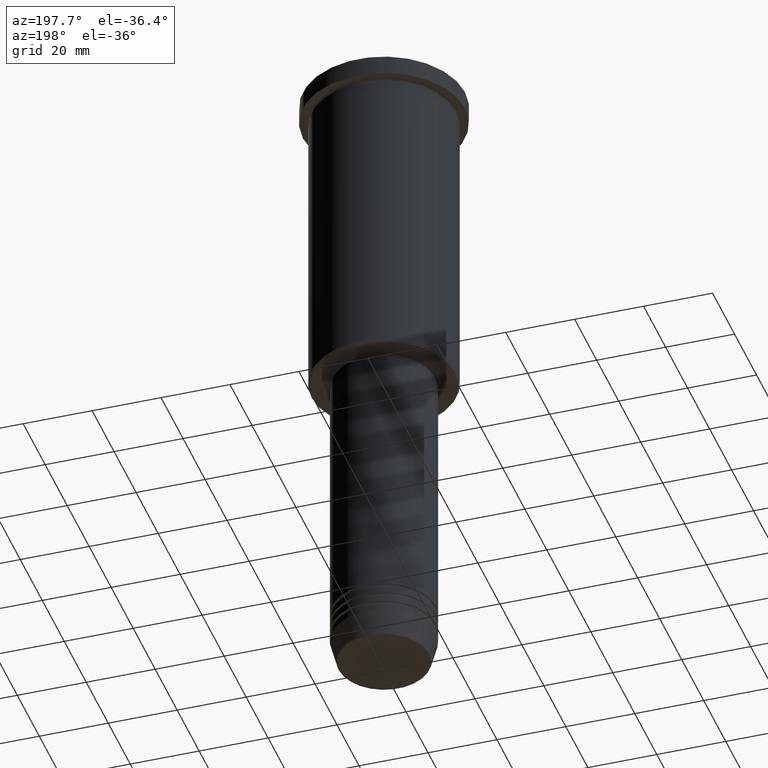
[diagram: clean part render]
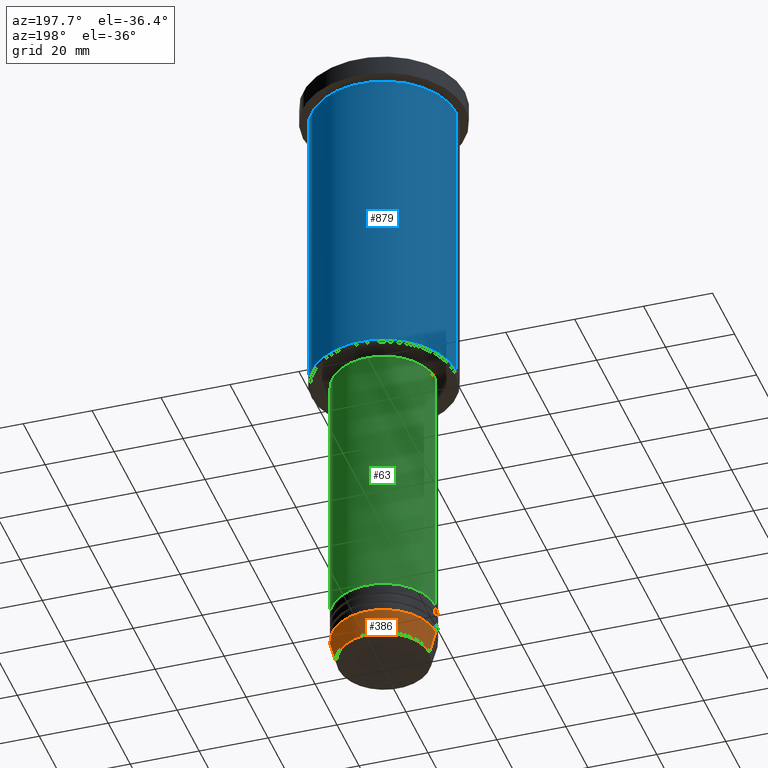
[diagram: same view with three faces highlighted in distinct colors, each labeled with its STEP entity id]
A machine part, auxiliary view with three faces highlighted in distinct colors.
Their STEP definitions:

[orange] entity #386 — the highlighted conical surface has half-angle 15 deg.
#45 = CARTESIAN_POINT ( 'NONE',  ( -13.22365507213719305, 1.728200442216588583E-15, -190.6294095225512422 ) ) ;
#49 = DIRECTION ( 'NONE',  ( -0.000000000000000000, -0.000000000000000000, 1.000000000000000000 ) ) ;
#54 = CIRCLE ( 'NONE', #448, 15.00000000000000000 ) ;
#59 = CARTESIAN_POINT ( 'NONE',  ( -15.00000000000000000, 1.836970198721029589E-15, -184.0000000000000284 ) ) ;
#70 = CONICAL_SURFACE ( 'NONE', #486, 15.00000000000000000, 0.2617993877991500740 ) ;
#85 = VERTEX_POINT ( 'NONE', #799 ) ;
#110 = LINE ( 'NONE', #659, #261 ) ;
#134 = CARTESIAN_POINT ( 'NONE',  ( -15.00000000000000000, 1.836970198721029589E-15, -184.0000000000000284 ) ) ;
#141 = EDGE_CURVE ( 'NONE', #85, #981, #719, .T. ) ;
#151 = VERTEX_POINT ( 'NONE', #59 ) ;
#159 = DIRECTION ( 'NONE',  ( 1.000000000000000000, 0.000000000000000000, 0.000000000000000000 ) ) ;
#193 = EDGE_CURVE ( 'NONE', #85, #806, #110, .T. ) ;
#203 = AXIS2_PLACEMENT_3D ( 'NONE', #771, #413, #159 ) ;
#261 = VECTOR ( 'NONE', #842, 1000.000000000000000 ) ;
#288 = EDGE_CURVE ( 'NONE', #806, #151, #54, .T. ) ;
#331 = DIRECTION ( 'NONE',  ( -0.000000000000000000, -0.000000000000000000, 1.000000000000000000 ) ) ;
#382 = DIRECTION ( 'NONE',  ( -0.2588190451025213501, 3.169619151431772337E-17, 0.9659258262890680902 ) ) ;
#386 = ADVANCED_FACE ( 'NONE', ( #1162 ), #70, .T. ) ;
#395 = CARTESIAN_POINT ( 'NONE',  ( 0.000000000000000000, 0.000000000000000000, -184.0000000000000284 ) ) ;
#402 = DIRECTION ( 'NONE',  ( 1.000000000000000000, 0.000000000000000000, 0.000000000000000000 ) ) ;
#413 = DIRECTION ( 'NONE',  ( -0.000000000000000000, -0.000000000000000000, 1.000000000000000000 ) ) ;
#417 = ORIENTED_EDGE ( 'NONE', *, *, #288, .F. ) ;
#448 = AXIS2_PLACEMENT_3D ( 'NONE', #395, #49, #402 ) ;
#473 = LINE ( 'NONE', #134, #1158 ) ;
#486 = AXIS2_PLACEMENT_3D ( 'NONE', #1152, #331, #500 ) ;
#500 = DIRECTION ( 'NONE',  ( 1.000000000000000000, 0.000000000000000000, 0.000000000000000000 ) ) ;
#658 = ORIENTED_EDGE ( 'NONE', *, *, #850, .T. ) ;
#659 = CARTESIAN_POINT ( 'NONE',  ( 15.00000000000000000, 0.000000000000000000, -184.0000000000000284 ) ) ;
#719 = CIRCLE ( 'NONE', #203, 13.22365507213719305 ) ;
#766 = CARTESIAN_POINT ( 'NONE',  ( 15.00000000000000000, 0.000000000000000000, -184.0000000000000284 ) ) ;
#771 = CARTESIAN_POINT ( 'NONE',  ( 0.000000000000000000, 0.000000000000000000, -190.6294095225512422 ) ) ;
#799 = CARTESIAN_POINT ( 'NONE',  ( 13.22365507213719305, 0.000000000000000000, -190.6294095225512422 ) ) ;
#806 = VERTEX_POINT ( 'NONE', #766 ) ;
#842 = DIRECTION ( 'NONE',  ( 0.2588190451025213501, 0.000000000000000000, 0.9659258262890680902 ) ) ;
#850 = EDGE_CURVE ( 'NONE', #981, #151, #473, .T. ) ;
#968 = ORIENTED_EDGE ( 'NONE', *, *, #193, .F. ) ;
#981 = VERTEX_POINT ( 'NONE', #45 ) ;
#993 = EDGE_LOOP ( 'NONE', ( #1022, #658, #417, #968 ) ) ;
#1022 = ORIENTED_EDGE ( 'NONE', *, *, #141, .T. ) ;
#1152 = CARTESIAN_POINT ( 'NONE',  ( 0.000000000000000000, 0.000000000000000000, -184.0000000000000284 ) ) ;
#1158 = VECTOR ( 'NONE', #382, 1000.000000000000000 ) ;
#1162 = FACE_OUTER_BOUND ( 'NONE', #993, .T. ) ;

[blue] entity #879 — the highlighted cylindrical surface (partial cylindrical patch) has radius 21 mm, axis along (-0, -0, 1).
#23 = CARTESIAN_POINT ( 'NONE',  ( 21.00000000000000000, 0.000000000000000000, -6.999999999999994671 ) ) ;
#108 = CARTESIAN_POINT ( 'NONE',  ( 0.000000000000000000, 0.000000000000000000, -95.50000000000001421 ) ) ;
#118 = VECTOR ( 'NONE', #652, 1000.000000000000000 ) ;
#120 = DIRECTION ( 'NONE',  ( -0.000000000000000000, -0.000000000000000000, 1.000000000000000000 ) ) ;
#152 = EDGE_CURVE ( 'NONE', #1065, #213, #1137, .T. ) ;
#158 = DIRECTION ( 'NONE',  ( 1.000000000000000000, 0.000000000000000000, 0.000000000000000000 ) ) ;
#213 = VERTEX_POINT ( 'NONE', #270 ) ;
#250 = EDGE_CURVE ( 'NONE', #1034, #435, #340, .T. ) ;
#270 = CARTESIAN_POINT ( 'NONE',  ( -21.00000000000000000, 2.571758278209441661E-15, -6.999999999999994671 ) ) ;
#299 = AXIS2_PLACEMENT_3D ( 'NONE', #506, #963, #158 ) ;
#315 = EDGE_LOOP ( 'NONE', ( #772, #899, #385, #675 ) ) ;
#330 = AXIS2_PLACEMENT_3D ( 'NONE', #108, #120, #760 ) ;
#340 = LINE ( 'NONE', #634, #802 ) ;
#377 = EDGE_CURVE ( 'NONE', #1034, #1065, #414, .T. ) ;
#385 = ORIENTED_EDGE ( 'NONE', *, *, #1082, .F. ) ;
#414 = CIRCLE ( 'NONE', #330, 21.00000000000000000 ) ;
#419 = AXIS2_PLACEMENT_3D ( 'NONE', #811, #815, #541 ) ;
#435 = VERTEX_POINT ( 'NONE', #23 ) ;
#506 = CARTESIAN_POINT ( 'NONE',  ( 0.000000000000000000, 0.000000000000000000, 0.000000000000000000 ) ) ;
#541 = DIRECTION ( 'NONE',  ( 1.000000000000000000, 0.000000000000000000, 0.000000000000000000 ) ) ;
#606 = CYLINDRICAL_SURFACE ( 'NONE', #299, 21.00000000000000000 ) ;
#634 = CARTESIAN_POINT ( 'NONE',  ( 21.00000000000000000, 0.000000000000000000, 0.000000000000000000 ) ) ;
#652 = DIRECTION ( 'NONE',  ( -0.000000000000000000, -0.000000000000000000, 1.000000000000000000 ) ) ;
#675 = ORIENTED_EDGE ( 'NONE', *, *, #250, .F. ) ;
#725 = CARTESIAN_POINT ( 'NONE',  ( -21.00000000000000000, 2.571758278209441661E-15, -95.50000000000001421 ) ) ;
#760 = DIRECTION ( 'NONE',  ( -1.000000000000000000, 0.000000000000000000, 0.000000000000000000 ) ) ;
#772 = ORIENTED_EDGE ( 'NONE', *, *, #377, .T. ) ;
#781 = FACE_OUTER_BOUND ( 'NONE', #315, .T. ) ;
#802 = VECTOR ( 'NONE', #1076, 1000.000000000000000 ) ;
#811 = CARTESIAN_POINT ( 'NONE',  ( 0.000000000000000000, 0.000000000000000000, -6.999999999999994671 ) ) ;
#815 = DIRECTION ( 'NONE',  ( -0.000000000000000000, -0.000000000000000000, 1.000000000000000000 ) ) ;
#843 = CIRCLE ( 'NONE', #419, 21.00000000000000000 ) ;
#879 = ADVANCED_FACE ( 'NONE', ( #781 ), #606, .T. ) ;
#899 = ORIENTED_EDGE ( 'NONE', *, *, #152, .T. ) ;
#900 = CARTESIAN_POINT ( 'NONE',  ( 21.00000000000000000, 0.000000000000000000, -95.50000000000001421 ) ) ;
#963 = DIRECTION ( 'NONE',  ( -0.000000000000000000, -0.000000000000000000, 1.000000000000000000 ) ) ;
#1032 = CARTESIAN_POINT ( 'NONE',  ( -21.00000000000000000, 2.571758278209441661E-15, 0.000000000000000000 ) ) ;
#1034 = VERTEX_POINT ( 'NONE', #900 ) ;
#1065 = VERTEX_POINT ( 'NONE', #725 ) ;
#1076 = DIRECTION ( 'NONE',  ( -0.000000000000000000, -0.000000000000000000, 1.000000000000000000 ) ) ;
#1082 = EDGE_CURVE ( 'NONE', #435, #213, #843, .T. ) ;
#1137 = LINE ( 'NONE', #1032, #118 ) ;

[green] entity #63 — the highlighted cylindrical surface (partial cylindrical patch) has radius 15 mm, axis along (-0, -0, 1).
#17 = VECTOR ( 'NONE', #1027, 1000.000000000000000 ) ;
#46 = EDGE_CURVE ( 'NONE', #303, #934, #111, .T. ) ;
#63 = ADVANCED_FACE ( 'NONE', ( #1095 ), #458, .T. ) ;
#88 = CARTESIAN_POINT ( 'NONE',  ( -15.00000000000000000, 1.836970198721029589E-15, 0.000000000000000000 ) ) ;
#105 = CARTESIAN_POINT ( 'NONE',  ( 15.00000000000000000, 0.000000000000000000, 0.000000000000000000 ) ) ;
#106 = DIRECTION ( 'NONE',  ( 1.000000000000000000, 0.000000000000000000, 0.000000000000000000 ) ) ;
#107 = DIRECTION ( 'NONE',  ( -0.000000000000000000, -0.000000000000000000, 1.000000000000000000 ) ) ;
#111 = CIRCLE ( 'NONE', #876, 15.00000000000000000 ) ;
#142 = CARTESIAN_POINT ( 'NONE',  ( 0.000000000000000000, 0.000000000000000000, -97.00000000000002842 ) ) ;
#215 = LINE ( 'NONE', #105, #17 ) ;
#216 = CARTESIAN_POINT ( 'NONE',  ( 15.00000000000000000, 0.000000000000000000, -97.00000000000002842 ) ) ;
#219 = VERTEX_POINT ( 'NONE', #236 ) ;
#232 = DIRECTION ( 'NONE',  ( 1.000000000000000000, 0.000000000000000000, 0.000000000000000000 ) ) ;
#236 = CARTESIAN_POINT ( 'NONE',  ( -15.00000000000000000, 1.836970198721029589E-15, -97.00000000000002842 ) ) ;
#266 = DIRECTION ( 'NONE',  ( -0.000000000000000000, -0.000000000000000000, 1.000000000000000000 ) ) ;
#303 = VERTEX_POINT ( 'NONE', #694 ) ;
#318 = AXIS2_PLACEMENT_3D ( 'NONE', #919, #107, #1066 ) ;
#347 = ORIENTED_EDGE ( 'NONE', *, *, #46, .T. ) ;
#371 = DIRECTION ( 'NONE',  ( -0.000000000000000000, -0.000000000000000000, 1.000000000000000000 ) ) ;
#409 = VERTEX_POINT ( 'NONE', #216 ) ;
#426 = DIRECTION ( 'NONE',  ( -0.000000000000000000, -0.000000000000000000, 1.000000000000000000 ) ) ;
#457 = CARTESIAN_POINT ( 'NONE',  ( 0.000000000000000000, 0.000000000000000000, -175.0000000000000000 ) ) ;
#458 = CYLINDRICAL_SURFACE ( 'NONE', #318, 15.00000000000000000 ) ;
#494 = CARTESIAN_POINT ( 'NONE',  ( -15.00000000000000000, 1.836970198721029589E-15, -175.0000000000000000 ) ) ;
#642 = ORIENTED_EDGE ( 'NONE', *, *, #770, .F. ) ;
#644 = VECTOR ( 'NONE', #266, 1000.000000000000000 ) ;
#694 = CARTESIAN_POINT ( 'NONE',  ( 15.00000000000000000, 0.000000000000000000, -175.0000000000000000 ) ) ;
#770 = EDGE_CURVE ( 'NONE', #303, #409, #215, .T. ) ;
#823 = LINE ( 'NONE', #88, #644 ) ;
#832 = ORIENTED_EDGE ( 'NONE', *, *, #909, .F. ) ;
#876 = AXIS2_PLACEMENT_3D ( 'NONE', #457, #371, #106 ) ;
#889 = ORIENTED_EDGE ( 'NONE', *, *, #994, .T. ) ;
#895 = AXIS2_PLACEMENT_3D ( 'NONE', #142, #426, #232 ) ;
#909 = EDGE_CURVE ( 'NONE', #409, #219, #1093, .T. ) ;
#919 = CARTESIAN_POINT ( 'NONE',  ( 0.000000000000000000, 0.000000000000000000, 0.000000000000000000 ) ) ;
#934 = VERTEX_POINT ( 'NONE', #494 ) ;
#994 = EDGE_CURVE ( 'NONE', #934, #219, #823, .T. ) ;
#1025 = EDGE_LOOP ( 'NONE', ( #347, #889, #832, #642 ) ) ;
#1027 = DIRECTION ( 'NONE',  ( -0.000000000000000000, -0.000000000000000000, 1.000000000000000000 ) ) ;
#1066 = DIRECTION ( 'NONE',  ( 1.000000000000000000, 0.000000000000000000, 0.000000000000000000 ) ) ;
#1093 = CIRCLE ( 'NONE', #895, 15.00000000000000000 ) ;
#1095 = FACE_OUTER_BOUND ( 'NONE', #1025, .T. ) ;